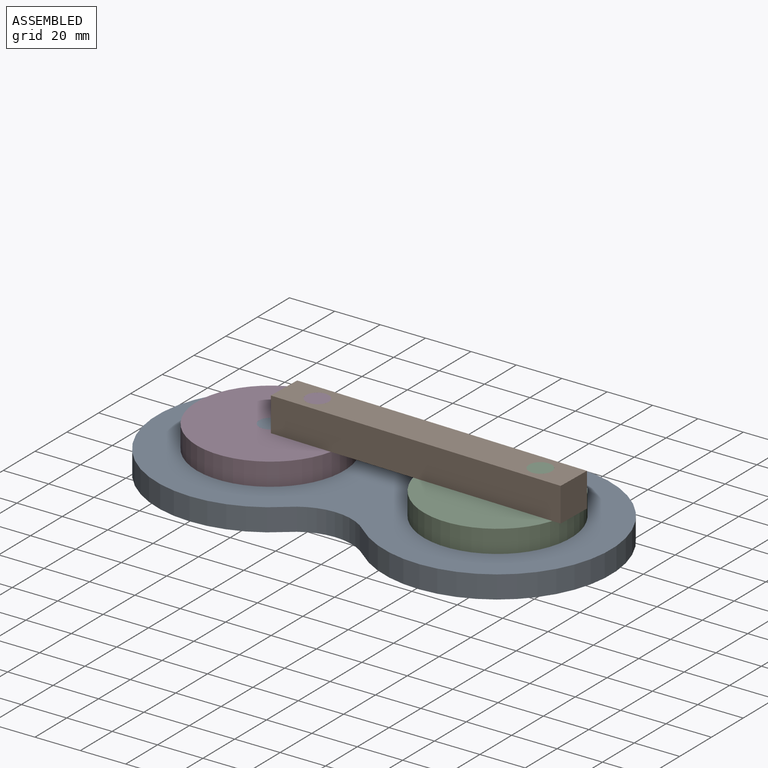
[diagram: assembled view]
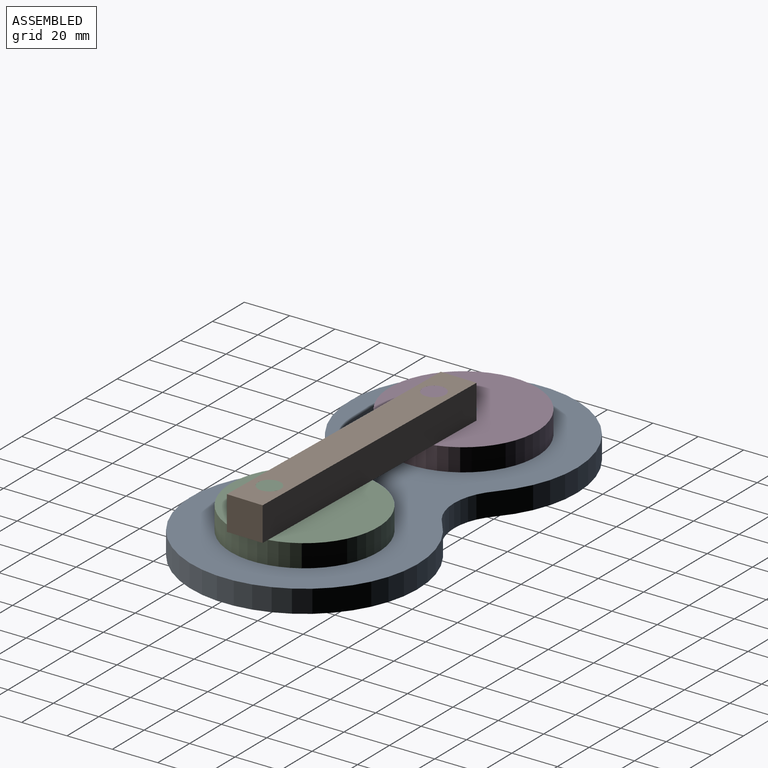
[diagram: assembled view, second angle]
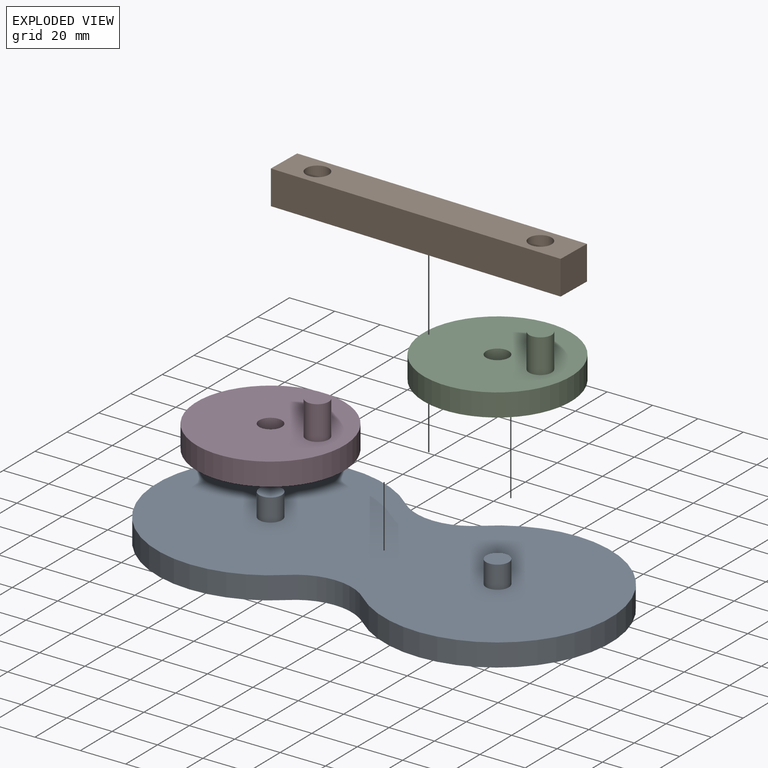
[diagram: exploded view]
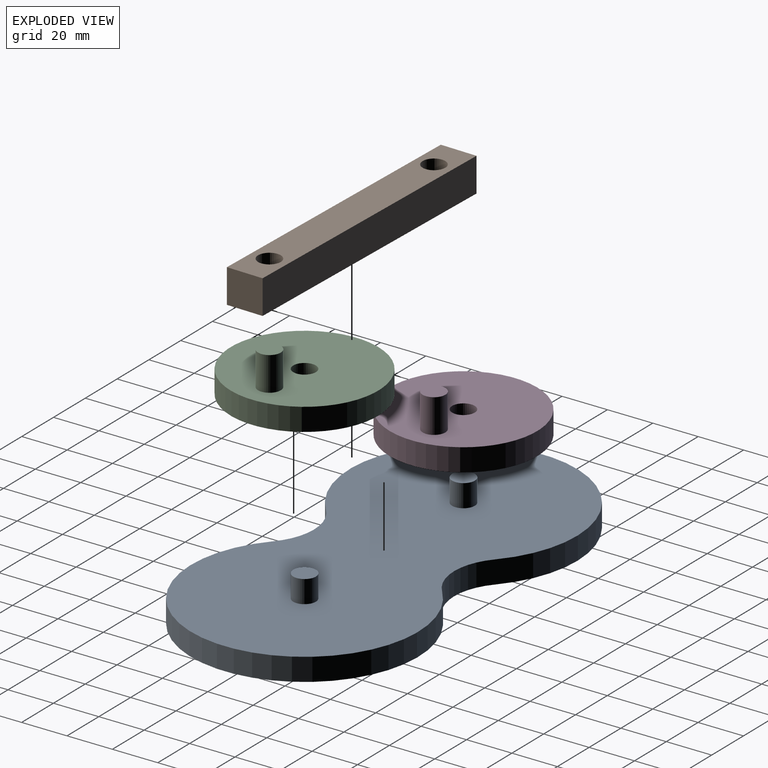
[diagram: exploded view, second angle]
ASSEMBLY  parts=4 mates=4
PART A: 10 faces, bbox 200x100x20 mm
  f0: cylinder r=25mm len=33.33mm, axis (0,0,-1), area 364.9mm2, adj f1,f3,f4,f5
  f1: cylinder r=50mm len=100mm, axis (0,0,-1), area 2300.5mm2, adj f0,f2,f4,f5
  f2: cylinder r=25mm len=33.33mm, axis (0,0,-1), area 364.9mm2, adj f1,f3,f4,f5
  f3: cylinder r=50mm len=100mm, axis (0,0,-1), area 2300.5mm2, adj f0,f2,f4,f5
  f4: plane 200x100mm, normal (0,0,1), area 16023.6mm2, adj f0,f1,f2,f3,f6,f8
  f5: plane 200x100mm, normal (0,0,-1), area 16180.6mm2, adj f0,f1,f2,f3
  f6: cylinder r=5mm len=10mm, axis (0,0,-1), area 314.2mm2, adj f4,f7
  f7: plane 10x10mm, normal (0,0,1), area 78.5mm2, adj f6
  f8: cylinder r=5mm len=10mm, axis (0,0,-1), area 314.2mm2, adj f4,f9
  f9: plane 10x10mm, normal (0,0,1), area 78.5mm2, adj f8
PART B: 8 faces, bbox 130x16x15 mm
  f0: plane 130x16mm, normal (0,0,1), area 1922.9mm2, adj f1,f3,f4,f5,f6,f7
  f1: plane 16x15mm, normal (-1,0,0), area 240mm2, adj f0,f2,f4,f5
  f2: plane 130x16mm, normal (0,0,-1), area 1922.9mm2, adj f1,f3,f4,f5,f6,f7
  f3: cylinder r=5mm len=15mm, axis (0,0,-1), area 471.2mm2, adj f0,f2
  f4: plane 130x15mm, normal (0,-1,0), area 1950mm2, adj f0,f1,f2,f6
  f5: plane 130x15mm, normal (0,1,0), area 1950mm2, adj f0,f1,f2,f6
  f6: plane 16x15mm, normal (1,0,0), area 240mm2, adj f0,f2,f4,f5
  f7: cylinder r=5mm len=15mm, axis (0,0,-1), area 471.2mm2, adj f0,f2
PART C: 6 faces, bbox 65x65x25 mm
  f0: cylinder r=5mm len=10mm, axis (0,0,-1), area 314.2mm2, adj f2,f3
  f1: cylinder r=32.5mm len=65mm, axis (0,0,-1), area 2042mm2, adj f2,f3
  f2: plane 65x65mm, normal (0,0,1), area 3161.2mm2, adj f0,f1,f4
  f3: plane 65x65mm, normal (0,0,-1), area 3239.8mm2, adj f0,f1
  f4: cylinder r=5mm len=15mm, axis (0,0,-1), area 471.2mm2, adj f2,f5
  f5: plane 10x10mm, normal (0,0,1), area 78.5mm2, adj f4
PART D: 6 faces, bbox 65x65x25 mm
  f0: cylinder r=5mm len=10mm, axis (0,0,-1), area 314.2mm2, adj f2,f3
  f1: cylinder r=32.5mm len=65mm, axis (0,0,-1), area 2042mm2, adj f2,f3
  f2: plane 65x65mm, normal (0,0,1), area 3161.2mm2, adj f0,f1,f4
  f3: plane 65x65mm, normal (0,0,-1), area 3239.8mm2, adj f0,f1
  f4: cylinder r=5mm len=15mm, axis (0,0,-1), area 471.2mm2, adj f2,f5
  f5: plane 10x10mm, normal (0,0,1), area 78.5mm2, adj f4
PLACE A t=(-21.81,19.37,-12.86)mm fixed
PLACE B rot(axis=(-0.01,-1,0),180deg) t=(78.14,18.37,42.14)mm
PLACE C rot(axis=(0,0,1),175.7deg) t=(177.91,11.86,-12.86)mm
PLACE D rot(axis=(0,0,-1),177.1deg) t=(-21.81,19.37,-12.86)mm
MATE revolute C.f4 <-> B.f7  axis (0,0,-1) through (98.13,17.87,7.14)mm
MATE revolute A.f1 <-> D.f1  axis (0,0,1) through (-21.81,19.37,-2.86)mm
MATE revolute A.f3 <-> C.f1  axis (0,0,1) through (78.19,19.37,-2.86)mm
MATE revolute B.f3 <-> D.f4  axis (0,0,1) through (-1.83,20.37,7.14)mm
